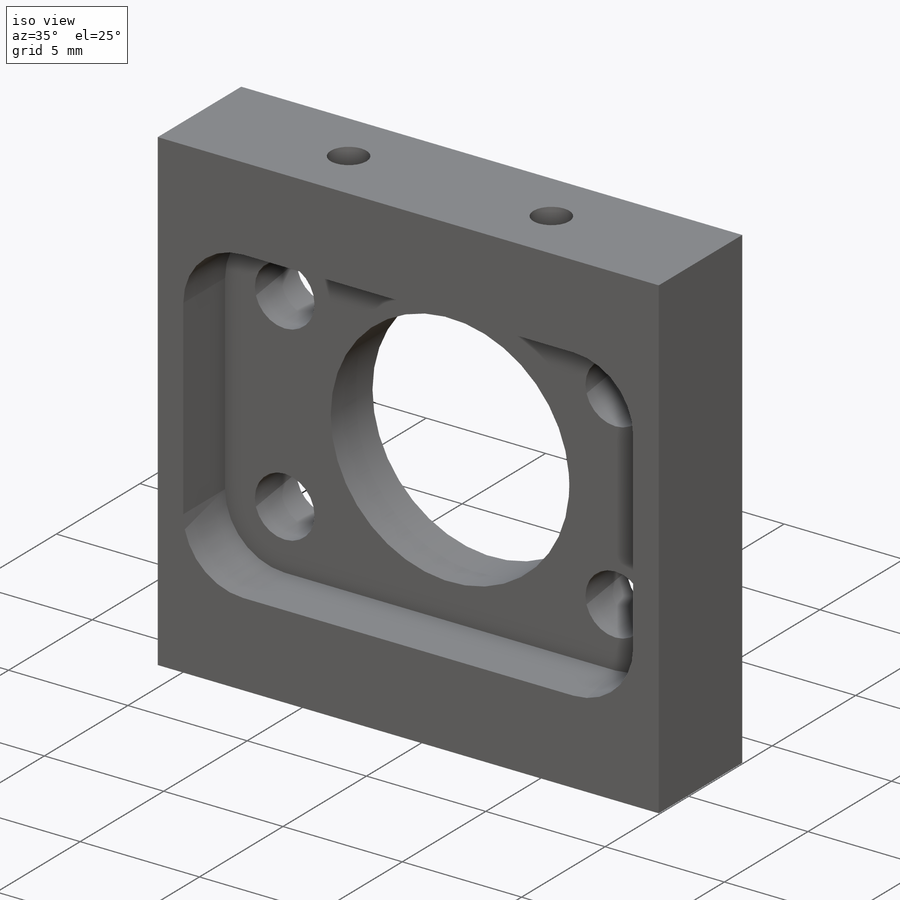
[diagram: iso view]
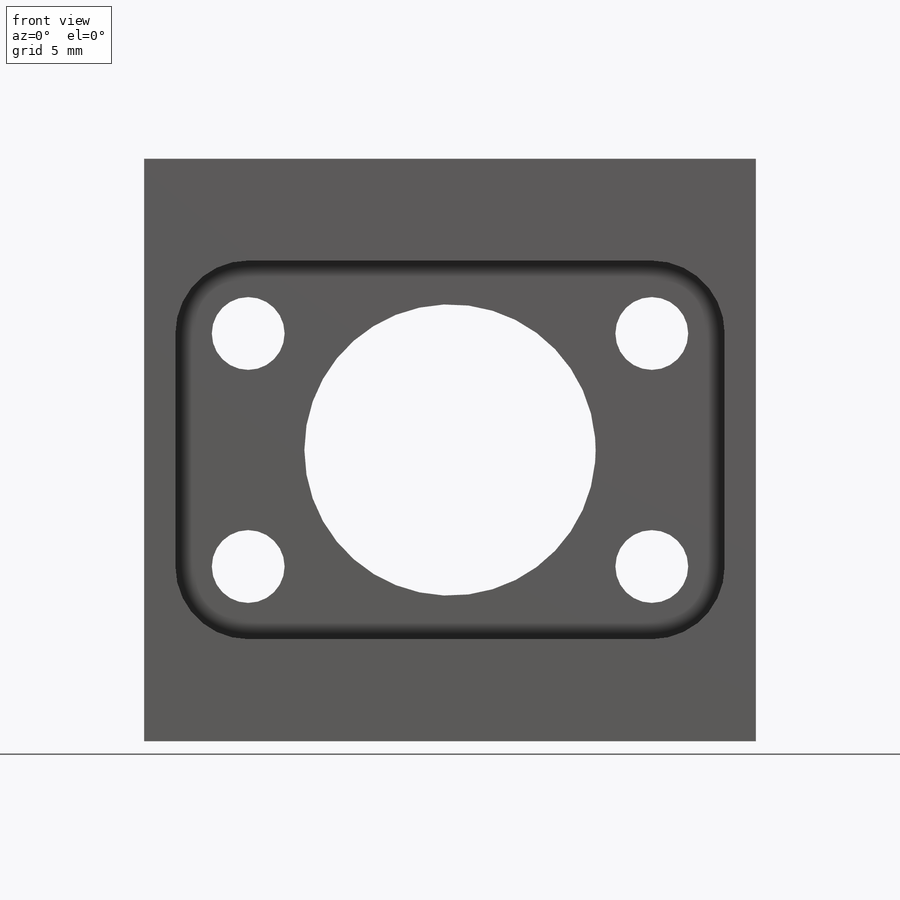
[diagram: front view]
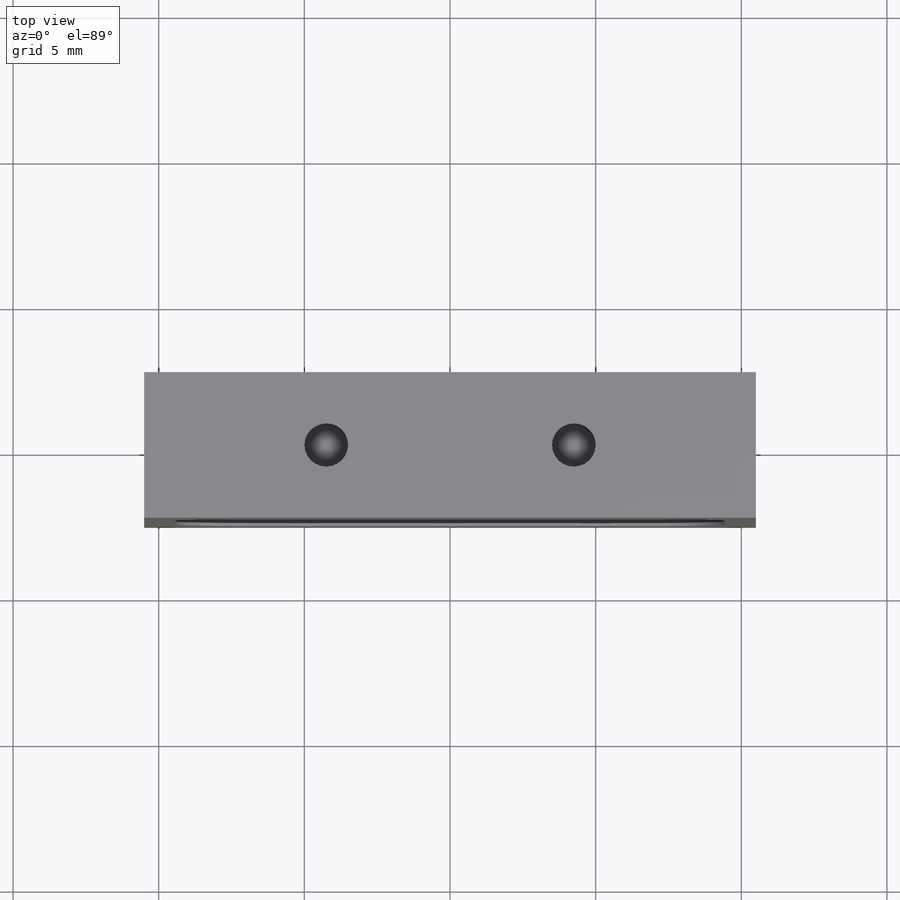
[diagram: top view]
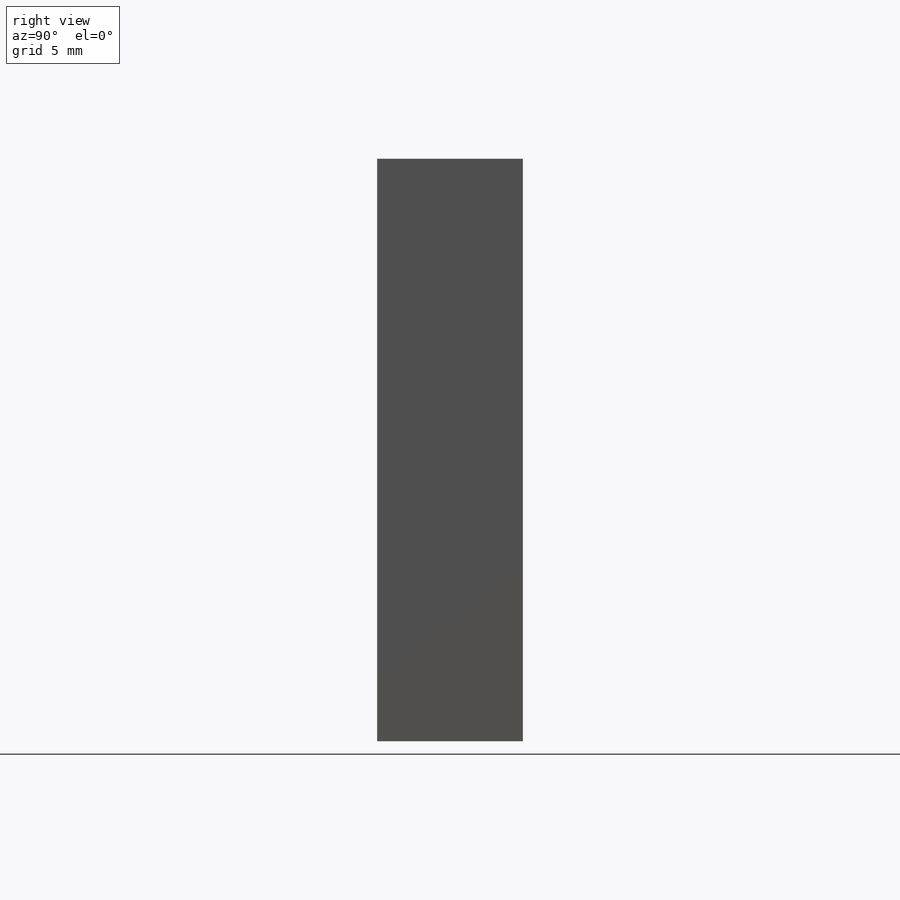
[diagram: right view]
SOLIDWORKS PART (.sldprt)
format: sldprt  version: not decoded by parser v0  size: 335,872 bytes
history: native  units: mm
features: plane x3, sketch x3, cut_extrude x2, material x1, extrude x1, mirror x1 (+9 scaffold rows collapsed)
feature tree (20):
  scaffold x9  (default folders/planes/origin — collapsed)
  material  "Unlegierter Baustahl"
  plane  "Ebene vorne"
  plane  "Ebene oben"
  plane  "Ebene rechts"
  sketch  "Skizze1"  dims[c1.D1=2.5mm c1.D2=5.0mm c1.D4=10.0mm c1.D7=12.0mm c2.D2=16.0mm c2.D7=7.5mm c2.D8=2.5mm c2.D3=16.0mm c2.D5=20.0mm c2.D6=21.0mm c3.D3=16.0mm c4.D3=60.0deg c4.D9=~1.071797mm]
  extrude  "Aufsatz-Linear austragen1"  Depth=5mm
  cut_extrude  "Schnitt-Linear austragen1"  [1 undecoded]
  sketch  "Skizze1<3>"  dims[D1=2.5mm]
  sketch  "Skizze4"  dims[D1=1.5mm D2=8.5mm]
  cut_extrude  "Schnitt-Linear austragen2"  Depth=3mm
  mirror  "Spiegeln1"
decode coverage: 5 of 7 modeling features carry decoded parameters
note: ~ marks probable driven/reference dimensions
note: 1 parameter value undecoded
note: suppression state not decoded; provenance and decode notes live in map.json
